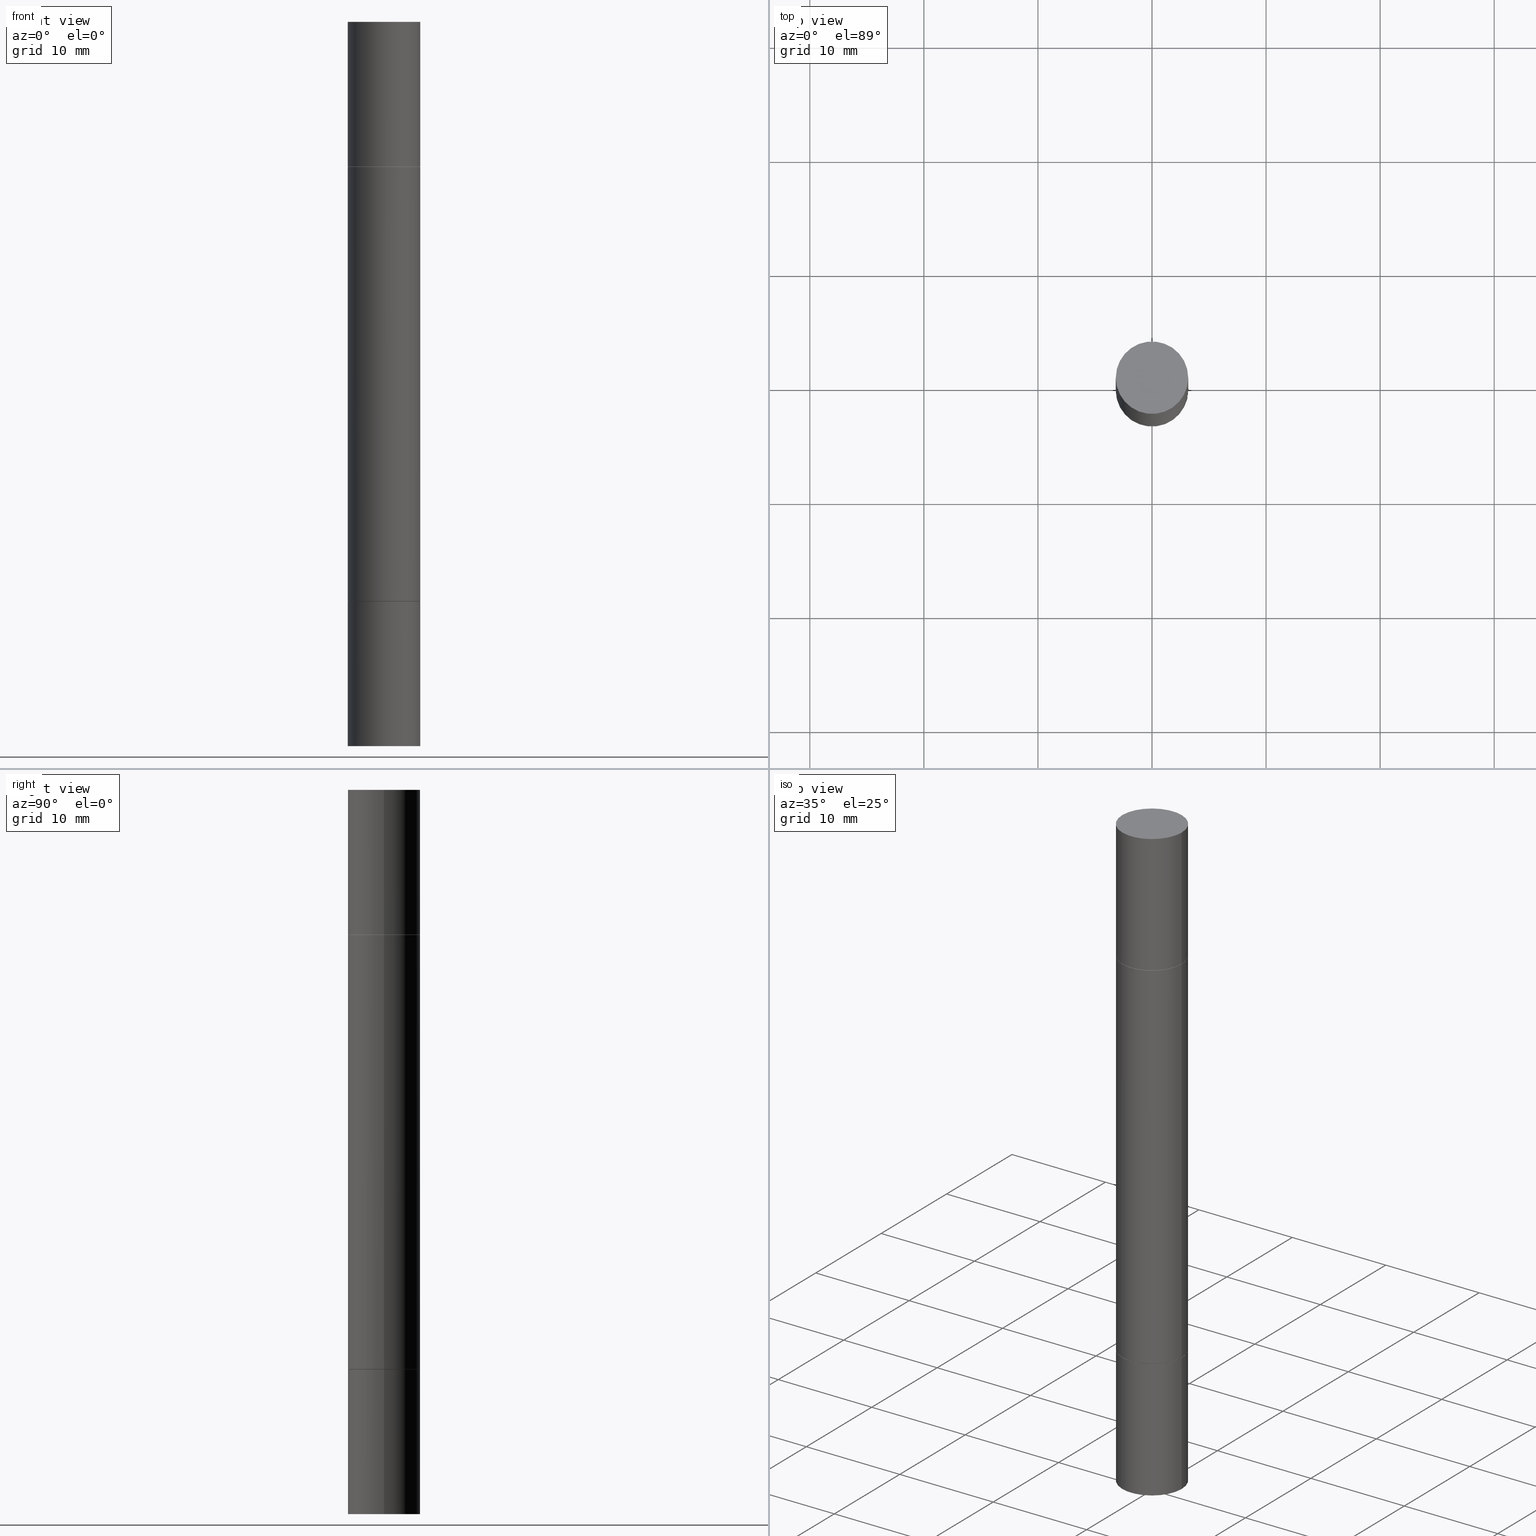
[diagram: canonical four-view strip — front | top / right | iso, engineering-drawing reading convention]
A machine part, canonical four-view strip (front | top / right | iso — engineering-drawing reading convention). The complete STEP part file that produces these views, byte-faithful:
ISO-10303-21;
HEADER;
FILE_DESCRIPTION (( 'STEP AP203' ),
    '1' );
FILE_NAME ('39679.STEP',
    '2024-03-04T15:44:06',
    ( '' ),
    ( '' ),
    'SwSTEP 2.0',
    'SolidWorks 2023',
    '' );
FILE_SCHEMA (( 'CONFIG_CONTROL_DESIGN' ));
ENDSEC;

DATA;
#1 = PRODUCT_DEFINITION ( 'UNKNOWN', '', #660, #491 ) ;
#2 = VECTOR ( 'NONE', #573, 39.37007874015748143 ) ;
#3 = CIRCLE ( 'NONE', #79, 0.1250000000000000000 ) ;
#4 = LINE ( 'NONE', #632, #438 ) ;
#5 = ORGANIZATION ( 'UNSPECIFIED', 'UNSPECIFIED', '' ) ;
#6 = FACE_OUTER_BOUND ( 'NONE', #298, .T. ) ;
#7 = ORIENTED_EDGE ( 'NONE', *, *, #37, .T. ) ;
#8 = EDGE_CURVE ( 'NONE', #84, #595, #526, .T. ) ;
#9 = EDGE_CURVE ( 'NONE', #71, #234, #39, .T. ) ;
#10 = FACE_OUTER_BOUND ( 'NONE', #119, .T. ) ;
#11 = VERTEX_POINT ( 'NONE', #428 ) ;
#12 = DIRECTION ( 'NONE',  ( 0.7071067811866138531, -2.468850131082952047E-15, 0.7071067811864811814 ) ) ;
#13 = EDGE_CURVE ( 'NONE', #414, #11, #102, .T. ) ;
#14 = CIRCLE ( 'NONE', #329, 0.1250000000000000000 ) ;
#15 = AXIS2_PLACEMENT_3D ( 'NONE', #38, #668, #253 ) ;
#16 = CARTESIAN_POINT ( 'NONE',  ( 4.888492143564087591E-29, -1.748176755301667838E-15, -0.5009999999999996678 ) ) ;
#17 = EDGE_CURVE ( 'NONE', #463, #238, #537, .T. ) ;
#18 = APPROVAL_DATE_TIME ( #67, #368 ) ;
#19 = VERTEX_POINT ( 'NONE', #618 ) ;
#20 = DIRECTION ( 'NONE',  ( 1.000000000000000000, -6.982962677686266711E-15, 0.000000000000000000 ) ) ;
#21 = ORIENTED_EDGE ( 'NONE', *, *, #65, .F. ) ;
#22 = CARTESIAN_POINT ( 'NONE',  ( -0.1250000000000000000, -7.872902438272180196E-15, -2.499999999999999556 ) ) ;
#23 = ORIENTED_EDGE ( 'NONE', *, *, #129, .T. ) ;
#24 = EDGE_CURVE ( 'NONE', #238, #463, #287, .T. ) ;
#25 = CARTESIAN_POINT ( 'NONE',  ( 8.728703347108443769E-16, 0.1250000000000000278, 0.000000000000000000 ) ) ;
#26 = AXIS2_PLACEMENT_3D ( 'NONE', #544, #535, #638 ) ;
#27 = ORIENTED_EDGE ( 'NONE', *, *, #232, .T. ) ;
#28 = DIRECTION ( 'NONE',  ( 1.000000000000000000, -6.982962677686266711E-15, 0.000000000000000000 ) ) ;
#29 = ORIENTED_EDGE ( 'NONE', *, *, #394, .F. ) ;
#30 = PLANE ( 'NONE',  #301 ) ;
#31 = EDGE_LOOP ( 'NONE', ( #87, #442, #461, #457 ) ) ;
#32 = CARTESIAN_POINT ( 'NONE',  ( 3.056836007731420185E-29, -4.364351673553931682E-15, -1.249999999999999778 ) ) ;
#33 = EDGE_LOOP ( 'NONE', ( #63, #246, #281, #80 ) ) ;
#34 = VECTOR ( 'NONE', #436, 39.37007874015748143 ) ;
#35 = VECTOR ( 'NONE', #130, 39.37007874015748143 ) ;
#36 = CIRCLE ( 'NONE', #649, 0.1249999999999999861 ) ;
#37 = EDGE_CURVE ( 'NONE', #11, #326, #669, .T. ) ;
#38 = CARTESIAN_POINT ( 'NONE',  ( 8.728703347108321496E-16, 0.1249999999999982514, -0.4999999999999998335 ) ) ;
#39 = LINE ( 'NONE', #529, #112 ) ;
#40 = CARTESIAN_POINT ( 'NONE',  ( 0.1250000000000000000, -8.711089938250227947E-16, 5.463695987328526437E-16 ) ) ;
#41 = CARTESIAN_POINT ( 'NONE',  ( 4.890937612370272633E-29, -1.744683864890116287E-15, -0.4999999999999998335 ) ) ;
#42 = DIRECTION ( 'NONE',  ( -2.445468806185136597E-29, -3.492890411551752677E-15, -1.000000000000000000 ) ) ;
#43 = DIRECTION ( 'NONE',  ( 0.000000000000000000, 3.492185875197449524E-15, 1.000000000000000000 ) ) ;
#44 = CLOSED_SHELL ( 'NONE', ( #547, #254, #661, #221 ) ) ;
#45 = CALENDAR_DATE ( 2024, 4, 3 ) ;
#46 = AXIS2_PLACEMENT_3D ( 'NONE', #462, #83, #551 ) ;
#47 = CC_DESIGN_APPROVAL ( #424, ( #1 ) ) ;
#48 = CYLINDRICAL_SURFACE ( 'NONE', #290, 0.1250000000000000000 ) ;
#49 = CARTESIAN_POINT ( 'NONE',  ( 4.890937612370273194E-29, -6.982962677686291165E-15, -2.000000000000000000 ) ) ;
#50 = CARTESIAN_POINT ( 'NONE',  ( 0.000000000000000000, 0.000000000000000000, 0.000000000000000000 ) ) ;
#51 = DIRECTION ( 'NONE',  ( -2.445468806185136597E-29, -3.492890411551752677E-15, -1.000000000000000000 ) ) ;
#52 = DIRECTION ( 'NONE',  ( -2.445468806185136877E-29, -3.492890411551753071E-15, -1.000000000000000000 ) ) ;
#53 = CARTESIAN_POINT ( 'NONE',  ( 4.890937612370273194E-29, -1.744683864890115301E-15, -0.4999999999999996114 ) ) ;
#54 = FACE_OUTER_BOUND ( 'NONE', #552, .T. ) ;
#55 = ORIENTED_EDGE ( 'NONE', *, *, #90, .T. ) ;
#56 = ORIENTED_EDGE ( 'NONE', *, *, #583, .T. ) ;
#57 = ADVANCED_FACE ( 'NONE', ( #525 ), #474, .F. ) ;
#58 = PLANE ( 'NONE',  #671 ) ;
#59 = ORIENTED_EDGE ( 'NONE', *, *, #191, .T. ) ;
#60 = EDGE_CURVE ( 'NONE', #407, #234, #14, .T. ) ;
#61 = DIRECTION ( 'NONE',  ( 2.445468806185136597E-29, 3.492890411551752677E-15, 1.000000000000000000 ) ) ;
#62 = EDGE_LOOP ( 'NONE', ( #655, #611, #56, #499 ) ) ;
#63 = ORIENTED_EDGE ( 'NONE', *, *, #226, .F. ) ;
#64 = CARTESIAN_POINT ( 'NONE',  ( 4.888492143564087591E-29, -1.748176755301667838E-15, -0.5009999999999996678 ) ) ;
#65 = EDGE_CURVE ( 'NONE', #454, #393, #371, .T. ) ;
#66 = ORIENTED_EDGE ( 'NONE', *, *, #191, .F. ) ;
#67 = DATE_AND_TIME ( #274, #91 ) ;
#68 = AXIS2_PLACEMENT_3D ( 'NONE', #484, #252, #195 ) ;
#69 = DIRECTION ( 'NONE',  ( 1.000000000000000000, -6.982962677686270655E-15, 0.000000000000000000 ) ) ;
#70 = APPROVAL_PERSON_ORGANIZATION ( #107, #288, #523 ) ;
#71 = VERTEX_POINT ( 'NONE', #94 ) ;
#72 = CARTESIAN_POINT ( 'NONE',  ( 4.890937612370273194E-29, -1.744683864890115301E-15, -0.4999999999999996114 ) ) ;
#73 = VERTEX_POINT ( 'NONE', #431 ) ;
#74 = CC_DESIGN_PERSON_AND_ORGANIZATION_ASSIGNMENT ( #439, #153, ( #660 ) ) ;
#75 = DIRECTION ( 'NONE',  ( -1.000000000000000000, 6.982962677686265922E-15, -9.839502134516470631E-33 ) ) ;
#76 = ORIENTED_EDGE ( 'NONE', *, *, #540, .F. ) ;
#77 = AXIS2_PLACEMENT_3D ( 'NONE', #272, #275, #69 ) ;
#78 = CARTESIAN_POINT ( 'NONE',  ( -0.1250000000000000000, -6.967654592696952427E-15, -2.000000000000000000 ) ) ;
#79 = AXIS2_PLACEMENT_3D ( 'NONE', #284, #352, #182 ) ;
#80 = ORIENTED_EDGE ( 'NONE', *, *, #132, .F. ) ;
#81 = DIRECTION ( 'NONE',  ( 1.000000000000000000, -6.982962677686266711E-15, 0.000000000000000000 ) ) ;
#82 = ORIENTED_EDGE ( 'NONE', *, *, #188, .T. ) ;
#83 = DIRECTION ( 'NONE',  ( -2.445468806185136597E-29, -3.492890411551752677E-15, -1.000000000000000000 ) ) ;
#84 = VERTEX_POINT ( 'NONE', #312 ) ;
#85 = ADVANCED_FACE ( 'NONE', ( #152 ), #576, .F. ) ;
#86 = DIRECTION ( 'NONE',  ( 1.000000000000000000, -6.982962677686265922E-15, 4.876176775795935793E-29 ) ) ;
#87 = ORIENTED_EDGE ( 'NONE', *, *, #286, .F. ) ;
#88 = VECTOR ( 'NONE', #673, 39.37007874015748143 ) ;
#89 = AXIS2_PLACEMENT_3D ( 'NONE', #546, #325, #219 ) ;
#90 = EDGE_CURVE ( 'NONE', #229, #358, #471, .T. ) ;
#91 = LOCAL_TIME ( 10, 44, 6.000000000000000000, #333 ) ;
#92 = COORDINATED_UNIVERSAL_TIME_OFFSET ( 5, 0, .BEHIND. ) ;
#93 = DIRECTION ( 'NONE',  ( 2.445468806185136597E-29, 3.492890411551752677E-15, 1.000000000000000000 ) ) ;
#94 = CARTESIAN_POINT ( 'NONE',  ( 0.1250000000000000000, -9.601573681818648281E-15, -2.500000000000000000 ) ) ;
#95 = PRODUCT_RELATED_PRODUCT_CATEGORY ( 'detail', '', ( #382 ) ) ;
#96 = DIRECTION ( 'NONE',  ( 1.000000000000000000, 0.000000000000000000, 0.000000000000000000 ) ) ;
#97 = DIRECTION ( 'NONE',  ( 1.000000000000000000, -6.982962677686262766E-15, 0.000000000000000000 ) ) ;
#98 = CARTESIAN_POINT ( 'NONE',  ( 4.888492143564087591E-29, -1.748176755301667838E-15, -0.5009999999999996678 ) ) ;
#99 = CALENDAR_DATE ( 2024, 4, 3 ) ;
#100 = DIRECTION ( 'NONE',  ( 1.000000000000000000, -6.982962677686270655E-15, 0.000000000000000000 ) ) ;
#101 = DIRECTION ( 'NONE',  ( 2.445468806185136597E-29, 3.492890411551752677E-15, 1.000000000000000000 ) ) ;
#102 = CIRCLE ( 'NONE', #299, 0.1250000000000000000 ) ;
#103 = AXIS2_PLACEMENT_3D ( 'NONE', #217, #501, #213 ) ;
#104 = DIRECTION ( 'NONE',  ( -2.445468806185136877E-29, -3.492890411551753071E-15, -1.000000000000000000 ) ) ;
#105 = EDGE_CURVE ( 'NONE', #229, #344, #557, .T. ) ;
#106 = DIRECTION ( 'NONE',  ( 1.000000000000000000, -6.982962677686267499E-15, 0.000000000000000000 ) ) ;
#107 = PERSON_AND_ORGANIZATION ( #434, #5 ) ;
#108 = DIRECTION ( 'NONE',  ( 1.000000000000000000, -6.982962677686263555E-15, 0.000000000000000000 ) ) ;
#109 = CARTESIAN_POINT ( 'NONE',  ( -0.1249999999999999861, -8.906145055802259979E-16, -0.5009999999999996678 ) ) ;
#110 = CARTESIAN_POINT ( 'NONE',  ( 0.1250000000000000000, -8.711089938250227947E-16, 5.463695987328526437E-16 ) ) ;
#111 = FACE_OUTER_BOUND ( 'NONE', #175, .T. ) ;
#112 = VECTOR ( 'NONE', #208, 39.37007874015748143 ) ;
#113 = AXIS2_PLACEMENT_3D ( 'NONE', #553, #460, #646 ) ;
#114 =( GEOMETRIC_REPRESENTATION_CONTEXT ( 3 ) GLOBAL_UNCERTAINTY_ASSIGNED_CONTEXT ( ( #126 ) ) GLOBAL_UNIT_ASSIGNED_CONTEXT ( ( #148, #199, #323 ) ) REPRESENTATION_CONTEXT ( 'NONE', 'WORKASPACE' ) );
#115 = DIRECTION ( 'NONE',  ( 1.000000000000000000, -6.982962677686267499E-15, 0.000000000000000000 ) ) ;
#116 = CYLINDRICAL_SURFACE ( 'NONE', #26, 0.1250000000000000000 ) ;
#117 = EDGE_LOOP ( 'NONE', ( #283, #643, #550, #230 ) ) ;
#118 = CARTESIAN_POINT ( 'NONE',  ( 0.1250000000000000000, -7.855833012397075293E-15, -2.000000000000000000 ) ) ;
#119 = EDGE_LOOP ( 'NONE', ( #422, #201, #59, #186 ) ) ;
#120 = AXIS2_PLACEMENT_3D ( 'NONE', #427, #248, #373 ) ;
#121 = CYLINDRICAL_SURFACE ( 'NONE', #256, 0.1249999999999998612 ) ;
#122 = CC_DESIGN_PERSON_AND_ORGANIZATION_ASSIGNMENT ( #432, #566, ( #1 ) ) ;
#123 = AXIS2_PLACEMENT_3D ( 'NONE', #587, #51, #635 ) ;
#124 = VERTEX_POINT ( 'NONE', #481 ) ;
#125 = EDGE_LOOP ( 'NONE', ( #21, #504, #409, #285 ) ) ;
#126 = UNCERTAINTY_MEASURE_WITH_UNIT (LENGTH_MEASURE( 1.000000000000000082E-05 ), #148, 'distance_accuracy_value', 'NONE');
#127 = DIRECTION ( 'NONE',  ( 2.445468806185136597E-29, 3.492890411551752677E-15, 1.000000000000000000 ) ) ;
#128 = ORIENTED_EDGE ( 'NONE', *, *, #90, .F. ) ;
#129 = EDGE_CURVE ( 'NONE', #171, #561, #612, .T. ) ;
#130 = DIRECTION ( 'NONE',  ( -2.445468806185136877E-29, -3.492890411551753071E-15, -1.000000000000000000 ) ) ;
#131 = ORIENTED_EDGE ( 'NONE', *, *, #24, .F. ) ;
#132 = EDGE_CURVE ( 'NONE', #615, #296, #375, .T. ) ;
#133 = CARTESIAN_POINT ( 'NONE',  ( 6.113672015462842613E-29, 1.761340885760521790E-18, 5.463695987328526437E-16 ) ) ;
#134 = AXIS2_PLACEMENT_3D ( 'NONE', #192, #149, #97 ) ;
#135 = EDGE_LOOP ( 'NONE', ( #336, #469 ) ) ;
#136 = ADVANCED_FACE ( 'NONE', ( #198 ), #263, .F. ) ;
#137 = DIRECTION ( 'NONE',  ( -2.445468806185136597E-29, -3.492890411551752677E-15, -1.000000000000000000 ) ) ;
#138 = EDGE_LOOP ( 'NONE', ( #337, #7, #548, #240 ) ) ;
#139 = MANIFOLD_SOLID_BREP ( 'Combine1', #458 ) ;
#140 = CARTESIAN_POINT ( 'NONE',  ( 4.890937612370273194E-29, -6.982962677686291165E-15, -2.000000000000000000 ) ) ;
#141 = EDGE_CURVE ( 'NONE', #463, #227, #446, .T. ) ;
#142 = DIRECTION ( 'NONE',  ( 2.445468806185136597E-29, 3.492890411551752677E-15, 1.000000000000000000 ) ) ;
#143 = MANIFOLD_SOLID_BREP ( 'Mirror1[1]', #658 ) ;
#144 = DIRECTION ( 'NONE',  ( 1.000000000000000000, -6.982962677686266711E-15, 0.000000000000000000 ) ) ;
#145 = AXIS2_PLACEMENT_3D ( 'NONE', #316, #363, #146 ) ;
#146 = DIRECTION ( 'NONE',  ( 1.000000000000000000, -6.982962677686266711E-15, 0.000000000000000000 ) ) ;
#147 = AXIS2_PLACEMENT_3D ( 'NONE', #251, #521, #100 ) ;
#148 =( CONVERSION_BASED_UNIT ( 'INCH', #634 ) LENGTH_UNIT ( ) NAMED_UNIT ( #560 ) );
#149 = DIRECTION ( 'NONE',  ( -2.445468806185136597E-29, -3.492890411551752677E-15, -1.000000000000000000 ) ) ;
#150 = EDGE_LOOP ( 'NONE', ( #680, #27, #628, #66 ) ) ;
#151 = CARTESIAN_POINT ( 'NONE',  ( 0.000000000000000000, 0.000000000000000000, 0.000000000000000000 ) ) ;
#152 = FACE_OUTER_BOUND ( 'NONE', #215, .T. ) ;
#153 = PERSON_AND_ORGANIZATION_ROLE ( 'design_supplier' ) ;
#154 = MANIFOLD_SOLID_BREP ( 'Mirror1[4]', #590 ) ;
#155 = DIRECTION ( 'NONE',  ( -2.445468806185136597E-29, -3.492890411551752677E-15, -1.000000000000000000 ) ) ;
#156 = CARTESIAN_POINT ( 'NONE',  ( 0.000000000000000000, 0.000000000000000000, -1.249999999999999778 ) ) ;
#157 = DATE_TIME_ROLE ( 'creation_date' ) ;
#158 = LOCAL_TIME ( 10, 44, 6.000000000000000000, #92 ) ;
#159 = CARTESIAN_POINT ( 'NONE',  ( 0.1249999999999999861, -2.621047090012450585E-15, -0.5009999999999996678 ) ) ;
#160 = CARTESIAN_POINT ( 'NONE',  ( 0.1239999999999999991, -2.610571236923213217E-15, -0.4999999999999998335 ) ) ;
#161 = ADVANCED_FACE ( 'NONE', ( #111 ), #542, .T. ) ;
#162 = PERSON_AND_ORGANIZATION_ROLE ( 'design_owner' ) ;
#163 = CARTESIAN_POINT ( 'NONE',  ( 8.728703347108321496E-16, 0.1249999999999930195, -2.000000000000000444 ) ) ;
#164 = CARTESIAN_POINT ( 'NONE',  ( 4.890937612370272633E-29, -6.982962677686290376E-15, -1.999999999999999778 ) ) ;
#165 = ORIENTED_EDGE ( 'NONE', *, *, #105, .T. ) ;
#166 = CARTESIAN_POINT ( 'NONE',  ( 0.1249999999999999861, -7.852341531058230708E-15, -1.998999999999999888 ) ) ;
#167 = ORIENTED_EDGE ( 'NONE', *, *, #493, .T. ) ;
#168 = CIRCLE ( 'NONE', #113, 0.1249999999999998612 ) ;
#169 = SECURITY_CLASSIFICATION ( '', '', #196 ) ;
#170 = LINE ( 'NONE', #594, #613 ) ;
#171 = VERTEX_POINT ( 'NONE', #488 ) ;
#172 = EDGE_CURVE ( 'NONE', #595, #84, #266, .T. ) ;
#173 = CARTESIAN_POINT ( 'NONE',  ( -0.1239999999999999991, -8.939821131664464541E-16, -0.4999999999999998335 ) ) ;
#174 = DIRECTION ( 'NONE',  ( -2.445468806185136597E-29, -3.492890411551752677E-15, -1.000000000000000000 ) ) ;
#175 = EDGE_LOOP ( 'NONE', ( #214, #392, #273, #349 ) ) ;
#176 = AXIS2_PLACEMENT_3D ( 'NONE', #303, #522, #677 ) ;
#177 = AXIS2_PLACEMENT_3D ( 'NONE', #666, #308, #620 ) ;
#178 = EDGE_CURVE ( 'NONE', #454, #322, #350, .T. ) ;
#179 = AXIS2_PLACEMENT_3D ( 'NONE', #291, #137, #604 ) ;
#180 = CARTESIAN_POINT ( 'NONE',  ( 4.890937612370272633E-29, -1.744683864890116287E-15, -0.4999999999999998335 ) ) ;
#181 = ORIENTED_EDGE ( 'NONE', *, *, #9, .F. ) ;
#182 = DIRECTION ( 'NONE',  ( 1.000000000000000000, -6.982962677686266711E-15, 0.000000000000000000 ) ) ;
#183 = VERTEX_POINT ( 'NONE', #637 ) ;
#184 = ADVANCED_FACE ( 'NONE', ( #279 ), #630, .T. ) ;
#185 = CYLINDRICAL_SURFACE ( 'NONE', #179, 0.1249999999999998612 ) ;
#186 = ORIENTED_EDGE ( 'NONE', *, *, #17, .T. ) ;
#187 = EDGE_CURVE ( 'NONE', #238, #393, #328, .T. ) ;
#188 = EDGE_CURVE ( 'NONE', #615, #358, #647, .T. ) ;
#189 = DIRECTION ( 'NONE',  ( 2.445468806185136597E-29, 3.492890411551752677E-15, 1.000000000000000000 ) ) ;
#190 = ORIENTED_EDGE ( 'NONE', *, *, #644, .T. ) ;
#191 = EDGE_CURVE ( 'NONE', #561, #463, #539, .T. ) ;
#192 = CARTESIAN_POINT ( 'NONE',  ( 0.000000000000000000, -8.730464687993621641E-15, -2.499999999999999556 ) ) ;
#193 = ORIENTED_EDGE ( 'NONE', *, *, #187, .T. ) ;
#194 = DIRECTION ( 'NONE',  ( 1.000000000000000000, -6.982962677686270655E-15, 0.000000000000000000 ) ) ;
#195 = DIRECTION ( 'NONE',  ( 1.000000000000000000, -6.982962677686266711E-15, 0.000000000000000000 ) ) ;
#196 = SECURITY_CLASSIFICATION_LEVEL ( 'unclassified' ) ;
#197 = CARTESIAN_POINT ( 'NONE',  ( 0.000000000000000000, -8.730464687993621641E-15, -2.499999999999999556 ) ) ;
#198 = FACE_OUTER_BOUND ( 'NONE', #417, .T. ) ;
#199 =( NAMED_UNIT ( * ) PLANE_ANGLE_UNIT ( ) SI_UNIT ( $, .RADIAN. ) );
#200 = CARTESIAN_POINT ( 'NONE',  ( 0.000000000000000000, -8.730464687993621641E-15, -2.499999999999999556 ) ) ;
#201 = ORIENTED_EDGE ( 'NONE', *, *, #354, .F. ) ;
#202 = PERSON_AND_ORGANIZATION ( #434, #5 ) ;
#203 = DIRECTION ( 'NONE',  ( 0.7071067811866138531, -7.407546758114477315E-15, -0.7071067811864811814 ) ) ;
#204 = CARTESIAN_POINT ( 'NONE',  ( 6.113672015462842613E-29, 1.761340885760521790E-18, 5.463695987328526437E-16 ) ) ;
#205 = EDGE_CURVE ( 'NONE', #322, #227, #170, .T. ) ;
#206 = PERSON_AND_ORGANIZATION ( #434, #5 ) ;
#207 = CARTESIAN_POINT ( 'NONE',  ( 6.113672015462842613E-29, -8.728703347107864943E-15, -2.500000000000000000 ) ) ;
#208 = DIRECTION ( 'NONE',  ( -2.445468806185136877E-29, 3.491481338843145188E-15, 1.000000000000000000 ) ) ;
#209 = DATE_AND_TIME ( #369, #158 ) ;
#210 = AXIS2_PLACEMENT_3D ( 'NONE', #163, #383, #534 ) ;
#211 = CARTESIAN_POINT ( 'NONE',  ( -0.1250000000000000000, -1.389901228073636467E-17, -0.4999999999999996114 ) ) ;
#212 = EDGE_CURVE ( 'NONE', #234, #407, #659, .T. ) ;
#213 = DIRECTION ( 'NONE',  ( 1.000000000000000000, -6.982962677686266711E-15, 0.000000000000000000 ) ) ;
#214 = ORIENTED_EDGE ( 'NONE', *, *, #37, .F. ) ;
#215 = EDGE_LOOP ( 'NONE', ( #639, #225 ) ) ;
#216 = CC_DESIGN_PERSON_AND_ORGANIZATION_ASSIGNMENT ( #202, #429, ( #660 ) ) ;
#217 = CARTESIAN_POINT ( 'NONE',  ( 4.890937612370272633E-29, -1.744683864890116287E-15, -0.4999999999999998335 ) ) ;
#218 = ORIENTED_EDGE ( 'NONE', *, *, #675, .T. ) ;
#219 = DIRECTION ( 'NONE',  ( 1.000000000000000000, -6.982962677686270655E-15, 0.000000000000000000 ) ) ;
#220 = ORIENTED_EDGE ( 'NONE', *, *, #500, .T. ) ;
#221 = ADVANCED_FACE ( 'NONE', ( #6 ), #116, .T. ) ;
#222 = AXIS2_PLACEMENT_3D ( 'NONE', #41, #101, #519 ) ;
#223 = AXIS2_PLACEMENT_3D ( 'NONE', #72, #127, #228 ) ;
#224 = DIRECTION ( 'NONE',  ( 2.445468806185136597E-29, 3.492890411551752677E-15, 1.000000000000000000 ) ) ;
#225 = ORIENTED_EDGE ( 'NONE', *, *, #433, .T. ) ;
#226 = EDGE_CURVE ( 'NONE', #358, #615, #475, .T. ) ;
#227 = VERTEX_POINT ( 'NONE', #166 ) ;
#228 = DIRECTION ( 'NONE',  ( 1.000000000000000000, -6.982962677686266711E-15, 0.000000000000000000 ) ) ;
#229 = VERTEX_POINT ( 'NONE', #338 ) ;
#230 = ORIENTED_EDGE ( 'NONE', *, *, #433, .F. ) ;
#231 = EDGE_CURVE ( 'NONE', #183, #326, #267, .T. ) ;
#232 = EDGE_CURVE ( 'NONE', #171, #238, #645, .T. ) ;
#233 = DIRECTION ( 'NONE',  ( 2.438088387897959769E-29, 3.492890411551753071E-15, 1.000000000000000000 ) ) ;
#234 = VERTEX_POINT ( 'NONE', #118 ) ;
#235 = AXIS2_PLACEMENT_3D ( 'NONE', #156, #43, #367 ) ;
#236 = AXIS2_PLACEMENT_3D ( 'NONE', #16, #61, #444 ) ;
#237 = DIRECTION ( 'NONE',  ( 1.000000000000000000, -6.982962677686270655E-15, 0.000000000000000000 ) ) ;
#238 = VERTEX_POINT ( 'NONE', #109 ) ;
#239 = CARTESIAN_POINT ( 'NONE',  ( -0.1249999999999999861, -8.906145055802259979E-16, -0.5009999999999996678 ) ) ;
#240 = ORIENTED_EDGE ( 'NONE', *, *, #397, .F. ) ;
#241 = DIRECTION ( 'NONE',  ( -2.445468806185136877E-29, -3.492890411551753071E-15, -1.000000000000000000 ) ) ;
#242 = ORIENTED_EDGE ( 'NONE', *, *, #9, .T. ) ;
#243 = CLOSED_SHELL ( 'NONE', ( #528, #390, #490, #161 ) ) ;
#244 = DIRECTION ( 'NONE',  ( 1.000000000000000000, -6.982962677686266711E-15, 4.876176775795935793E-29 ) ) ;
#245 = CONICAL_SURFACE ( 'NONE', #147, 0.1239999999999999991, 0.7853981633975420928 ) ;
#246 = ORIENTED_EDGE ( 'NONE', *, *, #520, .T. ) ;
#247 = CC_DESIGN_PERSON_AND_ORGANIZATION_ASSIGNMENT ( #577, #420, ( #169 ) ) ;
#248 = DIRECTION ( 'NONE',  ( -2.445468806185136597E-29, 3.491481338843145583E-15, 1.000000000000000000 ) ) ;
#249 = DIRECTION ( 'NONE',  ( 1.000000000000000000, -6.982962677686266711E-15, 0.000000000000000000 ) ) ;
#250 = PERSON_AND_ORGANIZATION ( #434, #5 ) ;
#251 = CARTESIAN_POINT ( 'NONE',  ( 4.890937612370272633E-29, -6.982962677686290376E-15, -1.999999999999999778 ) ) ;
#252 = DIRECTION ( 'NONE',  ( 2.445468806185136597E-29, 3.492890411551752677E-15, 1.000000000000000000 ) ) ;
#253 = DIRECTION ( 'NONE',  ( -1.000000000000000000, 6.982962677686265922E-15, -9.839502134516470631E-33 ) ) ;
#254 = ADVANCED_FACE ( 'NONE', ( #54 ), #58, .T. ) ;
#255 = CARTESIAN_POINT ( 'NONE',  ( -0.1239999999999999991, -8.939821131664464541E-16, -0.4999999999999998335 ) ) ;
#256 = AXIS2_PLACEMENT_3D ( 'NONE', #656, #343, #555 ) ;
#257 = APPROVAL_PERSON_ORGANIZATION ( #206, #368, #584 ) ;
#258 = APPROVAL_STATUS ( 'not_yet_approved' ) ;
#259 = CYLINDRICAL_SURFACE ( 'NONE', #319, 0.1250000000000000000 ) ;
#260 = DIRECTION ( 'NONE',  ( 2.445468806185136597E-29, 3.492890411551752677E-15, 1.000000000000000000 ) ) ;
#261 = DIRECTION ( 'NONE',  ( 0.000000000000000000, 0.000000000000000000, 1.000000000000000000 ) ) ;
#262 = DIRECTION ( 'NONE',  ( -2.445468806185136597E-29, 3.491481338843145583E-15, 1.000000000000000000 ) ) ;
#263 = PLANE ( 'NONE',  #387 ) ;
#264 = FACE_OUTER_BOUND ( 'NONE', #280, .T. ) ;
#265 = DIRECTION ( 'NONE',  ( -2.438088387897959769E-29, -3.492890411551753071E-15, -1.000000000000000000 ) ) ;
#266 = CIRCLE ( 'NONE', #640, 0.1250000000000000000 ) ;
#267 = CIRCLE ( 'NONE', #567, 0.1250000000000000000 ) ;
#268 = VECTOR ( 'NONE', #569, 39.37007874015748143 ) ;
#269 = CARTESIAN_POINT ( 'NONE',  ( 8.728703347108443769E-16, 0.1249999999999912709, -2.500000000000000444 ) ) ;
#270 = ORIENTED_EDGE ( 'NONE', *, *, #509, .F. ) ;
#271 = ADVANCED_FACE ( 'NONE', ( #10 ), #411, .T. ) ;
#272 = CARTESIAN_POINT ( 'NONE',  ( 0.000000000000000000, -8.730464687993621641E-15, -2.499999999999999556 ) ) ;
#273 = ORIENTED_EDGE ( 'NONE', *, *, #397, .T. ) ;
#274 = CALENDAR_DATE ( 2024, 4, 3 ) ;
#275 = DIRECTION ( 'NONE',  ( -2.445468806185136597E-29, -3.492890411551752677E-15, -1.000000000000000000 ) ) ;
#276 = EDGE_LOOP ( 'NONE', ( #465, #295 ) ) ;
#277 = VECTOR ( 'NONE', #391, 39.37007874015748143 ) ;
#278 = VECTOR ( 'NONE', #203, 39.37007874015748143 ) ;
#279 = FACE_OUTER_BOUND ( 'NONE', #150, .T. ) ;
#280 = EDGE_LOOP ( 'NONE', ( #657, #55, #451, #76 ) ) ;
#281 = ORIENTED_EDGE ( 'NONE', *, *, #374, .F. ) ;
#282 = FACE_OUTER_BOUND ( 'NONE', #135, .T. ) ;
#283 = ORIENTED_EDGE ( 'NONE', *, *, #520, .F. ) ;
#284 = CARTESIAN_POINT ( 'NONE',  ( 6.113672015462842613E-29, 1.761340885760521790E-18, 5.463695987328526437E-16 ) ) ;
#285 = ORIENTED_EDGE ( 'NONE', *, *, #664, .F. ) ;
#286 = EDGE_CURVE ( 'NONE', #124, #652, #497, .T. ) ;
#287 = CIRCLE ( 'NONE', #315, 0.1249999999999999861 ) ;
#288 = APPROVAL ( #258, 'UNSPECIFIED' ) ;
#289 = AXIS2_PLACEMENT_3D ( 'NONE', #456, #559, #81 ) ;
#290 = AXIS2_PLACEMENT_3D ( 'NONE', #200, #155, #625 ) ;
#291 = CARTESIAN_POINT ( 'NONE',  ( 0.000000000000000000, -8.730464687993621641E-15, -2.499999999999999556 ) ) ;
#292 = ORIENTED_EDGE ( 'NONE', *, *, #205, .F. ) ;
#293 = CARTESIAN_POINT ( 'NONE',  ( 8.728703347108443769E-16, 0.1250000000000000278, 0.000000000000000000 ) ) ;
#294 = ADVANCED_FACE ( 'NONE', ( #413 ), #185, .T. ) ;
#295 = ORIENTED_EDGE ( 'NONE', *, *, #178, .F. ) ;
#296 = VERTEX_POINT ( 'NONE', #408 ) ;
#297 = PLANE ( 'NONE',  #466 ) ;
#298 = EDGE_LOOP ( 'NONE', ( #511, #405, #242, #602 ) ) ;
#299 = AXIS2_PLACEMENT_3D ( 'NONE', #204, #260, #249 ) ;
#300 = FACE_OUTER_BOUND ( 'NONE', #117, .T. ) ;
#301 = AXIS2_PLACEMENT_3D ( 'NONE', #293, #503, #75 ) ;
#302 = AXIS2_PLACEMENT_3D ( 'NONE', #140, #564, #86 ) ;
#303 = CARTESIAN_POINT ( 'NONE',  ( 8.728703347108321496E-16, 0.1249999999999982514, -0.4999999999999998335 ) ) ;
#304 = EDGE_CURVE ( 'NONE', #652, #124, #3, .T. ) ;
#305 = COORDINATED_UNIVERSAL_TIME_OFFSET ( 5, 0, .BEHIND. ) ;
#306 = ADVANCED_FACE ( 'NONE', ( #562 ), #341, .T. ) ;
#307 = CARTESIAN_POINT ( 'NONE',  ( -0.1249999999999998612, -7.872902438272180196E-15, -2.499999999999999556 ) ) ;
#308 = DIRECTION ( 'NONE',  ( 2.445468806185136597E-29, 3.492890411551752677E-15, 1.000000000000000000 ) ) ;
#309 = DATE_AND_TIME ( #99, #498 ) ;
#310 = EDGE_CURVE ( 'NONE', #124, #595, #614, .T. ) ;
#311 = FACE_OUTER_BOUND ( 'NONE', #31, .T. ) ;
#312 = CARTESIAN_POINT ( 'NONE',  ( 0.1250000000000000000, -2.617554199600898443E-15, -0.4999999999999996114 ) ) ;
#313 = COORDINATED_UNIVERSAL_TIME_OFFSET ( 5, 0, .BEHIND. ) ;
#314 = FACE_OUTER_BOUND ( 'NONE', #138, .T. ) ;
#315 = AXIS2_PLACEMENT_3D ( 'NONE', #98, #142, #106 ) ;
#316 = CARTESIAN_POINT ( 'NONE',  ( 4.890937612370273194E-29, -1.744683864890115301E-15, -0.4999999999999996114 ) ) ;
#317 = CONICAL_SURFACE ( 'NONE', #359, 0.1239999999999999991, 0.7853981633975420928 ) ;
#318 = ADVANCED_FACE ( 'NONE', ( #510 ), #297, .T. ) ;
#319 = AXIS2_PLACEMENT_3D ( 'NONE', #197, #476, #194 ) ;
#320 = COORDINATED_UNIVERSAL_TIME_OFFSET ( 5, 0, .BEHIND. ) ;
#321 = CARTESIAN_POINT ( 'NONE',  ( -0.1250000000000000000, 8.881784197001252323E-16, -6.148668862818632227E-30 ) ) ;
#322 = VERTEX_POINT ( 'NONE', #406 ) ;
#323 =( NAMED_UNIT ( * ) SI_UNIT ( $, .STERADIAN. ) SOLID_ANGLE_UNIT ( ) );
#324 = PLANE ( 'NONE',  #210 ) ;
#325 = DIRECTION ( 'NONE',  ( -2.445468806185136597E-29, 3.491481338843145583E-15, 1.000000000000000000 ) ) ;
#326 = VERTEX_POINT ( 'NONE', #606 ) ;
#327 = FACE_OUTER_BOUND ( 'NONE', #563, .T. ) ;
#328 = LINE ( 'NONE', #496, #34 ) ;
#329 = AXIS2_PLACEMENT_3D ( 'NONE', #49, #582, #626 ) ;
#330 = VECTOR ( 'NONE', #104, 39.37007874015748143 ) ;
#331 = DIRECTION ( 'NONE',  ( -2.445468806185136877E-29, -3.492890411551753071E-15, -1.000000000000000000 ) ) ;
#332 = ORIENTED_EDGE ( 'NONE', *, *, #8, .F. ) ;
#333 = COORDINATED_UNIVERSAL_TIME_OFFSET ( 5, 0, .BEHIND. ) ;
#334 = EDGE_CURVE ( 'NONE', #326, #183, #516, .T. ) ;
#335 = DIRECTION ( 'NONE',  ( 2.445468806185136597E-29, 3.492890411551752677E-15, 1.000000000000000000 ) ) ;
#336 = ORIENTED_EDGE ( 'NONE', *, *, #13, .T. ) ;
#337 = ORIENTED_EDGE ( 'NONE', *, *, #505, .F. ) ;
#338 = CARTESIAN_POINT ( 'NONE',  ( -0.1239999999999999991, -8.922983093733360288E-16, -0.4999999999999998335 ) ) ;
#339 = ORIENTED_EDGE ( 'NONE', *, *, #286, .T. ) ;
#340 = AXIS2_PLACEMENT_3D ( 'NONE', #588, #586, #20 ) ;
#341 = CONICAL_SURFACE ( 'NONE', #641, 0.1239999999999999991, 0.7853981633975420928 ) ;
#342 = DIRECTION ( 'NONE',  ( 1.000000000000000000, -6.982962677686270655E-15, 0.000000000000000000 ) ) ;
#343 = DIRECTION ( 'NONE',  ( -2.445468806185136597E-29, -3.492890411551752677E-15, -1.000000000000000000 ) ) ;
#344 = VERTEX_POINT ( 'NONE', #453 ) ;
#345 = FACE_OUTER_BOUND ( 'NONE', #616, .T. ) ;
#346 = ORIENTED_EDGE ( 'NONE', *, *, #212, .F. ) ;
#347 = ADVANCED_FACE ( 'NONE', ( #345 ), #317, .T. ) ;
#348 = FACE_OUTER_BOUND ( 'NONE', #33, .T. ) ;
#349 = ORIENTED_EDGE ( 'NONE', *, *, #231, .T. ) ;
#350 = CIRCLE ( 'NONE', #578, 0.1239999999999999991 ) ;
#351 = VECTOR ( 'NONE', #591, 39.37007874015748143 ) ;
#352 = DIRECTION ( 'NONE',  ( 2.445468806185136597E-29, 3.492890411551752677E-15, 1.000000000000000000 ) ) ;
#353 = ORIENTED_EDGE ( 'NONE', *, *, #141, .F. ) ;
#354 = EDGE_CURVE ( 'NONE', #561, #171, #388, .T. ) ;
#355 = DIRECTION ( 'NONE',  ( -2.445468806185136597E-29, 3.491481338843145583E-15, 1.000000000000000000 ) ) ;
#356 = ORIENTED_EDGE ( 'NONE', *, *, #675, .F. ) ;
#357 = FACE_OUTER_BOUND ( 'NONE', #62, .T. ) ;
#358 = VERTEX_POINT ( 'NONE', #239 ) ;
#359 = AXIS2_PLACEMENT_3D ( 'NONE', #609, #355, #237 ) ;
#360 = DIRECTION ( 'NONE',  ( -0.000000000000000000, -3.492185875197449130E-15, -1.000000000000000000 ) ) ;
#361 = CIRCLE ( 'NONE', #467, 0.1249999999999999861 ) ;
#362 = CIRCLE ( 'NONE', #477, 0.1250000000000000000 ) ;
#363 = DIRECTION ( 'NONE',  ( 2.445468806185136597E-29, 3.492890411551752677E-15, 1.000000000000000000 ) ) ;
#364 =( LENGTH_UNIT ( ) NAMED_UNIT ( * ) SI_UNIT ( $, .METRE. ) );
#365 = CYLINDRICAL_SURFACE ( 'NONE', #581, 0.1250000000000000000 ) ;
#366 = ADVANCED_FACE ( 'NONE', ( #648 ), #403, .T. ) ;
#367 = DIRECTION ( 'NONE',  ( 0.000000000000000000, 1.000000000000000000, -3.492185875197449524E-15 ) ) ;
#368 = APPROVAL ( #377, 'UNSPECIFIED' ) ;
#369 = CALENDAR_DATE ( 2024, 4, 3 ) ;
#370 = CARTESIAN_POINT ( 'NONE',  ( 4.890937612370272633E-29, -1.744683864890116287E-15, -0.4999999999999998335 ) ) ;
#371 = LINE ( 'NONE', #570, #400 ) ;
#372 = APPLICATION_PROTOCOL_DEFINITION ( 'international standard', 'config_control_design', 1994, #592 ) ;
#373 = DIRECTION ( 'NONE',  ( 1.000000000000000000, -6.982962677686270655E-15, 0.000000000000000000 ) ) ;
#374 = EDGE_CURVE ( 'NONE', #296, #19, #168, .T. ) ;
#375 = LINE ( 'NONE', #532, #670 ) ;
#376 = VECTOR ( 'NONE', #241, 39.37007874015748143 ) ;
#377 = APPROVAL_STATUS ( 'not_yet_approved' ) ;
#378 = MANIFOLD_SOLID_BREP ( 'Mirror1[3]', #243 ) ;
#379 = DIRECTION ( 'NONE',  ( -2.445468806185136597E-29, 3.491481338843145583E-15, 1.000000000000000000 ) ) ;
#380 = CC_DESIGN_PERSON_AND_ORGANIZATION_ASSIGNMENT ( #574, #162, ( #382 ) ) ;
#381 = DIRECTION ( 'NONE',  ( 1.000000000000000000, -6.982962677686265922E-15, 9.839502134516470631E-33 ) ) ;
#382 = PRODUCT ( '39679', '39679', '', ( #485 ) ) ;
#383 = DIRECTION ( 'NONE',  ( 2.438088387897960049E-29, -3.491481338843145188E-15, -1.000000000000000000 ) ) ;
#384 = DIRECTION ( 'NONE',  ( -2.445468806185136597E-29, 3.491481338843145583E-15, 1.000000000000000000 ) ) ;
#385 = ORIENTED_EDGE ( 'NONE', *, *, #509, .T. ) ;
#386 = DIRECTION ( 'NONE',  ( 1.000000000000000000, -6.982962677686266711E-15, 0.000000000000000000 ) ) ;
#387 = AXIS2_PLACEMENT_3D ( 'NONE', #425, #265, #381 ) ;
#388 = CIRCLE ( 'NONE', #289, 0.1239999999999999991 ) ;
#389 = LOCAL_TIME ( 10, 44, 6.000000000000000000, #313 ) ;
#390 = ADVANCED_FACE ( 'NONE', ( #282 ), #30, .T. ) ;
#391 = DIRECTION ( 'NONE',  ( 0.7071067811866138531, -7.407546758114477315E-15, -0.7071067811864811814 ) ) ;
#392 = ORIENTED_EDGE ( 'NONE', *, *, #13, .F. ) ;
#393 = VERTEX_POINT ( 'NONE', #398 ) ;
#394 = EDGE_CURVE ( 'NONE', #73, #71, #558, .T. ) ;
#395 = MANIFOLD_SOLID_BREP ( 'Body-Move/Copy2[1]', #44 ) ;
#396 = DIRECTION ( 'NONE',  ( 1.000000000000000000, -6.982962677686266711E-15, 0.000000000000000000 ) ) ;
#397 = EDGE_CURVE ( 'NONE', #414, #183, #464, .T. ) ;
#398 = CARTESIAN_POINT ( 'NONE',  ( -0.1249999999999999861, -3.506789423832488265E-15, -1.998999999999999888 ) ) ;
#399 = ORIENTED_EDGE ( 'NONE', *, *, #304, .T. ) ;
#400 = VECTOR ( 'NONE', #419, 39.37007874015748143 ) ;
#401 = AXIS2_PLACEMENT_3D ( 'NONE', #599, #654, #506 ) ;
#402 = CONICAL_SURFACE ( 'NONE', #123, 0.1239999999999999991, 0.7853981633975420928 ) ;
#403 = CYLINDRICAL_SURFACE ( 'NONE', #46, 0.1249999999999998612 ) ;
#404 = ADVANCED_FACE ( 'NONE', ( #348 ), #121, .T. ) ;
#405 = ORIENTED_EDGE ( 'NONE', *, *, #394, .T. ) ;
#406 = CARTESIAN_POINT ( 'NONE',  ( 0.1239999999999999991, -7.848850049719387701E-15, -1.999999999999999778 ) ) ;
#407 = VERTEX_POINT ( 'NONE', #78 ) ;
#408 = CARTESIAN_POINT ( 'NONE',  ( 0.1249999999999998612, -3.929134549138581225E-15, -1.249999999999999778 ) ) ;
#409 = ORIENTED_EDGE ( 'NONE', *, *, #205, .T. ) ;
#410 = VECTOR ( 'NONE', #331, 39.37007874015748143 ) ;
#411 = CONICAL_SURFACE ( 'NONE', #103, 0.1239999999999999991, 0.7853981633975420928 ) ;
#412 = APPROVAL_PERSON_ORGANIZATION ( #250, #424, #667 ) ;
#413 = FACE_OUTER_BOUND ( 'NONE', #495, .T. ) ;
#414 = VERTEX_POINT ( 'NONE', #40 ) ;
#415 = PRODUCT_DEFINITION_SHAPE ( 'NONE', 'NONE',  #1 ) ;
#416 = PLANE ( 'NONE',  #302 ) ;
#417 = EDGE_LOOP ( 'NONE', ( #385, #165 ) ) ;
#418 = LINE ( 'NONE', #676, #278 ) ;
#419 = DIRECTION ( 'NONE',  ( -0.7071067811866138531, 7.493145998870593974E-15, 0.7071067811864811814 ) ) ;
#420 = PERSON_AND_ORGANIZATION_ROLE ( 'classification_officer' ) ;
#421 = AXIS2_PLACEMENT_3D ( 'NONE', #133, #189, #28 ) ;
#422 = ORIENTED_EDGE ( 'NONE', *, *, #232, .F. ) ;
#423 = CARTESIAN_POINT ( 'NONE',  ( 0.1249999999999999861, -2.621047090012450585E-15, -0.5009999999999996678 ) ) ;
#424 = APPROVAL ( #472, 'UNSPECIFIED' ) ;
#425 = CARTESIAN_POINT ( 'NONE',  ( 4.890937612370273194E-29, -1.744683864890115301E-15, -0.4999999999999996114 ) ) ;
#426 = ADVANCED_FACE ( 'NONE', ( #619 ), #245, .T. ) ;
#427 = CARTESIAN_POINT ( 'NONE',  ( 4.890937612370272633E-29, -6.982962677686290376E-15, -1.999999999999999778 ) ) ;
#428 = CARTESIAN_POINT ( 'NONE',  ( -0.1250000000000000000, -1.389901228073636467E-17, 5.463695987328557991E-16 ) ) ;
#429 = PERSON_AND_ORGANIZATION_ROLE ( 'creator' ) ;
#430 = FACE_OUTER_BOUND ( 'NONE', #478, .T. ) ;
#431 = CARTESIAN_POINT ( 'NONE',  ( -0.1250000000000000000, -6.967654592696952427E-15, -2.500000000000000000 ) ) ;
#432 = PERSON_AND_ORGANIZATION ( #434, #5 ) ;
#433 = EDGE_CURVE ( 'NONE', #19, #296, #437, .T. ) ;
#434 = PERSON ( 'UNSPECIFIED', 'UNSPECIFIED', 'UNSPECIFIED', ('UNSPECIFIED'), ('UNSPECIFIED'), ('UNSPECIFIED') ) ;
#435 = DIRECTION ( 'NONE',  ( 1.000000000000000000, -6.982962677686265922E-15, 9.839502134516470631E-33 ) ) ;
#436 = DIRECTION ( 'NONE',  ( -2.445468806185136877E-29, -3.492890411551753071E-15, -1.000000000000000000 ) ) ;
#437 = CIRCLE ( 'NONE', #447, 0.1249999999999998612 ) ;
#438 = VECTOR ( 'NONE', #585, 39.37007874015748143 ) ;
#439 = PERSON_AND_ORGANIZATION ( #434, #5 ) ;
#440 = CARTESIAN_POINT ( 'NONE',  ( 4.888492143564087591E-29, -6.979471196347447369E-15, -1.998999999999999888 ) ) ;
#441 = DIRECTION ( 'NONE',  ( 2.445468806185136597E-29, 3.492890411551752677E-15, 1.000000000000000000 ) ) ;
#442 = ORIENTED_EDGE ( 'NONE', *, *, #310, .T. ) ;
#443 = DIRECTION ( 'NONE',  ( -2.445468806185136597E-29, 3.491481338843145583E-15, 1.000000000000000000 ) ) ;
#444 = DIRECTION ( 'NONE',  ( 1.000000000000000000, -6.982962677686267499E-15, 0.000000000000000000 ) ) ;
#445 = ORIENTED_EDGE ( 'NONE', *, *, #65, .T. ) ;
#446 = LINE ( 'NONE', #642, #410 ) ;
#447 = AXIS2_PLACEMENT_3D ( 'NONE', #32, #360, #572 ) ;
#448 = ORIENTED_EDGE ( 'NONE', *, *, #354, .T. ) ;
#449 = CC_DESIGN_APPROVAL ( #288, ( #660 ) ) ;
#450 = CARTESIAN_POINT ( 'NONE',  ( 4.890937612370273194E-29, -1.744683864890115301E-15, -0.4999999999999996114 ) ) ;
#451 = ORIENTED_EDGE ( 'NONE', *, *, #226, .T. ) ;
#452 = ADVANCED_FACE ( 'NONE', ( #300 ), #672, .T. ) ;
#453 = CARTESIAN_POINT ( 'NONE',  ( 0.1239999999999999991, -2.610571236923213217E-15, -0.4999999999999998335 ) ) ;
#454 = VERTEX_POINT ( 'NONE', #617 ) ;
#455 = SHAPE_DEFINITION_REPRESENTATION ( #415, #653 ) ;
#456 = CARTESIAN_POINT ( 'NONE',  ( 4.890937612370272633E-29, -1.744683864890116287E-15, -0.4999999999999998335 ) ) ;
#457 = ORIENTED_EDGE ( 'NONE', *, *, #583, .F. ) ;
#458 = CLOSED_SHELL ( 'NONE', ( #347, #366, #184, #636, #271, #294, #426, #571 ) ) ;
#459 = AXIS2_PLACEMENT_3D ( 'NONE', #580, #93, #144 ) ;
#460 = DIRECTION ( 'NONE',  ( -0.000000000000000000, -3.492185875197449130E-15, -1.000000000000000000 ) ) ;
#461 = ORIENTED_EDGE ( 'NONE', *, *, #172, .T. ) ;
#462 = CARTESIAN_POINT ( 'NONE',  ( 0.000000000000000000, -8.730464687993621641E-15, -2.499999999999999556 ) ) ;
#463 = VERTEX_POINT ( 'NONE', #423 ) ;
#464 = LINE ( 'NONE', #651, #35 ) ;
#465 = ORIENTED_EDGE ( 'NONE', *, *, #493, .F. ) ;
#466 = AXIS2_PLACEMENT_3D ( 'NONE', #25, #233, #512 ) ;
#467 = AXIS2_PLACEMENT_3D ( 'NONE', #440, #262, #483 ) ;
#468 = CARTESIAN_POINT ( 'NONE',  ( 0.1239999999999999991, -2.610571236923213217E-15, -0.4999999999999998335 ) ) ;
#469 = ORIENTED_EDGE ( 'NONE', *, *, #505, .T. ) ;
#470 = DIRECTION ( 'NONE',  ( 2.445468806185136597E-29, 3.492890411551752677E-15, 1.000000000000000000 ) ) ;
#471 = LINE ( 'NONE', #255, #88 ) ;
#472 = APPROVAL_STATUS ( 'not_yet_approved' ) ;
#473 = FACE_OUTER_BOUND ( 'NONE', #543, .T. ) ;
#474 = PLANE ( 'NONE',  #176 ) ;
#475 = CIRCLE ( 'NONE', #579, 0.1249999999999999861 ) ;
#476 = DIRECTION ( 'NONE',  ( -2.445468806185136597E-29, -3.492890411551752677E-15, -1.000000000000000000 ) ) ;
#477 = AXIS2_PLACEMENT_3D ( 'NONE', #207, #443, #342 ) ;
#478 = EDGE_LOOP ( 'NONE', ( #218, #220, #346, #181 ) ) ;
#479 = DATE_AND_TIME ( #45, #389 ) ;
#480 = DIRECTION ( 'NONE',  ( 1.000000000000000000, -6.982962677686270655E-15, 0.000000000000000000 ) ) ;
#481 = CARTESIAN_POINT ( 'NONE',  ( -0.1250000000000000000, -1.389901228073636467E-17, 5.463695987328557991E-16 ) ) ;
#482 = APPLICATION_PROTOCOL_DEFINITION ( 'international standard', 'config_control_design', 1994, #596 ) ;
#483 = DIRECTION ( 'NONE',  ( 1.000000000000000000, -6.982962677686263555E-15, 0.000000000000000000 ) ) ;
#484 = CARTESIAN_POINT ( 'NONE',  ( 4.890937612370272633E-29, -1.744683864890116287E-15, -0.4999999999999998335 ) ) ;
#485 = MECHANICAL_CONTEXT ( 'NONE', #592, 'mechanical' ) ;
#486 = ADVANCED_FACE ( 'NONE', ( #311 ), #623, .T. ) ;
#487 = DIRECTION ( 'NONE',  ( -2.438088387897959769E-29, -3.492890411551753071E-15, -1.000000000000000000 ) ) ;
#488 = CARTESIAN_POINT ( 'NONE',  ( -0.1239999999999999991, -8.922983093733360288E-16, -0.4999999999999998335 ) ) ;
#489 = CC_DESIGN_APPROVAL ( #368, ( #169 ) ) ;
#490 = ADVANCED_FACE ( 'NONE', ( #473 ), #524, .F. ) ;
#491 = DESIGN_CONTEXT ( 'detailed design', #596, 'design' ) ;
#492 = DIRECTION ( 'NONE',  ( -1.000000000000000000, 6.982962677686265922E-15, -4.876176775795935793E-29 ) ) ;
#493 = EDGE_CURVE ( 'NONE', #322, #454, #631, .T. ) ;
#494 = CARTESIAN_POINT ( 'NONE',  ( 4.890937612370273194E-29, -1.744683864890115301E-15, -0.4999999999999996114 ) ) ;
#495 = EDGE_LOOP ( 'NONE', ( #556, #593, #605, #190 ) ) ;
#496 = CARTESIAN_POINT ( 'NONE',  ( -0.1249999999999998612, -7.872902438272180196E-15, -2.499999999999999556 ) ) ;
#497 = CIRCLE ( 'NONE', #421, 0.1250000000000000000 ) ;
#498 = LOCAL_TIME ( 10, 44, 6.000000000000000000, #305 ) ;
#499 = ORIENTED_EDGE ( 'NONE', *, *, #8, .T. ) ;
#500 = EDGE_CURVE ( 'NONE', #73, #407, #575, .T. ) ;
#501 = DIRECTION ( 'NONE',  ( -2.445468806185136597E-29, -3.492890411551752677E-15, -1.000000000000000000 ) ) ;
#502 = ORIENTED_EDGE ( 'NONE', *, *, #540, .T. ) ;
#503 = DIRECTION ( 'NONE',  ( 2.438088387897959769E-29, 3.492890411551753071E-15, 1.000000000000000000 ) ) ;
#504 = ORIENTED_EDGE ( 'NONE', *, *, #178, .T. ) ;
#505 = EDGE_CURVE ( 'NONE', #11, #414, #601, .T. ) ;
#506 = DIRECTION ( 'NONE',  ( 1.000000000000000000, -6.982962677686270655E-15, 0.000000000000000000 ) ) ;
#507 = ORIENTED_EDGE ( 'NONE', *, *, #212, .T. ) ;
#508 = LOCAL_TIME ( 10, 44, 6.000000000000000000, #320 ) ;
#509 = EDGE_CURVE ( 'NONE', #344, #229, #538, .T. ) ;
#510 = FACE_OUTER_BOUND ( 'NONE', #515, .T. ) ;
#511 = ORIENTED_EDGE ( 'NONE', *, *, #500, .F. ) ;
#512 = DIRECTION ( 'NONE',  ( -1.000000000000000000, 6.982962677686265922E-15, -9.839502134516470631E-33 ) ) ;
#513 = ORIENTED_EDGE ( 'NONE', *, *, #644, .F. ) ;
#514 = DIRECTION ( 'NONE',  ( 1.000000000000000000, -6.982962677686266711E-15, 0.000000000000000000 ) ) ;
#515 = EDGE_LOOP ( 'NONE', ( #399, #339 ) ) ;
#516 = CIRCLE ( 'NONE', #223, 0.1250000000000000000 ) ;
#517 = AXIS2_PLACEMENT_3D ( 'NONE', #53, #487, #435 ) ;
#518 = CARTESIAN_POINT ( 'NONE',  ( 0.000000000000000000, -8.730464687993621641E-15, -2.499999999999999556 ) ) ;
#519 = DIRECTION ( 'NONE',  ( 1.000000000000000000, -6.982962677686266711E-15, 0.000000000000000000 ) ) ;
#520 = EDGE_CURVE ( 'NONE', #358, #19, #665, .T. ) ;
#521 = DIRECTION ( 'NONE',  ( -2.445468806185136597E-29, 3.491481338843145583E-15, 1.000000000000000000 ) ) ;
#522 = DIRECTION ( 'NONE',  ( 2.438088387897959769E-29, 3.492890411551753071E-15, 1.000000000000000000 ) ) ;
#523 = APPROVAL_ROLE ( '' ) ;
#524 = PLANE ( 'NONE',  #15 ) ;
#525 = FACE_OUTER_BOUND ( 'NONE', #545, .T. ) ;
#526 = CIRCLE ( 'NONE', #145, 0.1250000000000000000 ) ;
#527 = DIRECTION ( 'NONE',  ( 1.000000000000000000, -6.982962677686266711E-15, 0.000000000000000000 ) ) ;
#528 = ADVANCED_FACE ( 'NONE', ( #314 ), #259, .T. ) ;
#529 = CARTESIAN_POINT ( 'NONE',  ( 0.1250000000000000000, -8.728703347107833388E-16, 6.095220969744919741E-30 ) ) ;
#530 = CALENDAR_DATE ( 2024, 4, 3 ) ;
#531 = FACE_OUTER_BOUND ( 'NONE', #554, .T. ) ;
#532 = CARTESIAN_POINT ( 'NONE',  ( 0.1249999999999998612, -9.603335022704403402E-15, -2.499999999999999556 ) ) ;
#533 = ADVANCED_FACE ( 'NONE', ( #357 ), #48, .T. ) ;
#534 = DIRECTION ( 'NONE',  ( -1.000000000000000000, 6.982962677686265922E-15, -4.876176775795935793E-29 ) ) ;
#535 = DIRECTION ( 'NONE',  ( -2.445468806185136597E-29, 3.491481338843145583E-15, 1.000000000000000000 ) ) ;
#536 = CARTESIAN_POINT ( 'NONE',  ( 4.888492143564087591E-29, -6.979471196347447369E-15, -1.998999999999999888 ) ) ;
#537 = CIRCLE ( 'NONE', #177, 0.1249999999999999861 ) ;
#538 = CIRCLE ( 'NONE', #622, 0.1239999999999999991 ) ;
#539 = LINE ( 'NONE', #160, #277 ) ;
#540 = EDGE_CURVE ( 'NONE', #344, #615, #418, .T. ) ;
#541 = CC_DESIGN_DATE_AND_TIME_ASSIGNMENT ( #621, #678, ( #169 ) ) ;
#542 = CYLINDRICAL_SURFACE ( 'NONE', #77, 0.1250000000000000000 ) ;
#543 = EDGE_LOOP ( 'NONE', ( #624, #610 ) ) ;
#544 = CARTESIAN_POINT ( 'NONE',  ( 0.000000000000000000, 0.000000000000000000, 0.000000000000000000 ) ) ;
#545 = EDGE_LOOP ( 'NONE', ( #332, #663 ) ) ;
#546 = CARTESIAN_POINT ( 'NONE',  ( 4.890937612370273194E-29, -6.982962677686291165E-15, -2.000000000000000000 ) ) ;
#547 = ADVANCED_FACE ( 'NONE', ( #430 ), #365, .T. ) ;
#548 = ORIENTED_EDGE ( 'NONE', *, *, #334, .T. ) ;
#549 = CC_DESIGN_SECURITY_CLASSIFICATION ( #169, ( #660 ) ) ;
#550 = ORIENTED_EDGE ( 'NONE', *, *, #132, .T. ) ;
#551 = DIRECTION ( 'NONE',  ( 1.000000000000000000, -6.982962677686262766E-15, 0.000000000000000000 ) ) ;
#552 = EDGE_LOOP ( 'NONE', ( #356, #29 ) ) ;
#553 = CARTESIAN_POINT ( 'NONE',  ( 3.056836007731420185E-29, -4.364351673553931682E-15, -1.249999999999999778 ) ) ;
#554 = EDGE_LOOP ( 'NONE', ( #507, #589 ) ) ;
#555 = DIRECTION ( 'NONE',  ( 1.000000000000000000, -6.982962677686262766E-15, 0.000000000000000000 ) ) ;
#556 = ORIENTED_EDGE ( 'NONE', *, *, #187, .F. ) ;
#557 = CIRCLE ( 'NONE', #222, 0.1239999999999999991 ) ;
#558 = CIRCLE ( 'NONE', #401, 0.1250000000000000000 ) ;
#559 = DIRECTION ( 'NONE',  ( 2.445468806185136597E-29, 3.492890411551752677E-15, 1.000000000000000000 ) ) ;
#560 = DIMENSIONAL_EXPONENTS ( 1.000000000000000000, 0.000000000000000000, 0.000000000000000000, 0.000000000000000000, 0.000000000000000000, 0.000000000000000000, 0.000000000000000000 ) ;
#561 = VERTEX_POINT ( 'NONE', #468 ) ;
#562 = FACE_OUTER_BOUND ( 'NONE', #650, .T. ) ;
#563 = EDGE_LOOP ( 'NONE', ( #448, #23 ) ) ;
#564 = DIRECTION ( 'NONE',  ( -2.438088387897960049E-29, 3.491481338843145188E-15, 1.000000000000000000 ) ) ;
#565 = CARTESIAN_POINT ( 'NONE',  ( -0.1250000000000000000, -7.872902438272180196E-15, -2.499999999999999556 ) ) ;
#566 = PERSON_AND_ORGANIZATION_ROLE ( 'creator' ) ;
#567 = AXIS2_PLACEMENT_3D ( 'NONE', #450, #441, #386 ) ;
#568 = AXIS2_PLACEMENT_3D ( 'NONE', #518, #42, #480 ) ;
#569 = DIRECTION ( 'NONE',  ( -2.445468806185136877E-29, 3.491481338843145188E-15, 1.000000000000000000 ) ) ;
#570 = CARTESIAN_POINT ( 'NONE',  ( -0.1239999999999999991, -6.101889685343766152E-15, -1.999999999999999778 ) ) ;
#571 = ADVANCED_FACE ( 'NONE', ( #662 ), #416, .F. ) ;
#572 = DIRECTION ( 'NONE',  ( 0.000000000000000000, 1.000000000000000000, -4.370956789862825883E-15 ) ) ;
#573 = DIRECTION ( 'NONE',  ( -2.445468806185136877E-29, -3.492890411551753071E-15, -1.000000000000000000 ) ) ;
#574 = PERSON_AND_ORGANIZATION ( #434, #5 ) ;
#575 = LINE ( 'NONE', #321, #268 ) ;
#576 = PLANE ( 'NONE',  #235 ) ;
#577 = PERSON_AND_ORGANIZATION ( #434, #5 ) ;
#578 = AXIS2_PLACEMENT_3D ( 'NONE', #164, #384, #633 ) ;
#579 = AXIS2_PLACEMENT_3D ( 'NONE', #64, #224, #115 ) ;
#580 = CARTESIAN_POINT ( 'NONE',  ( 6.113672015462842613E-29, 1.761340885760521790E-18, 5.463695987328526437E-16 ) ) ;
#581 = AXIS2_PLACEMENT_3D ( 'NONE', #151, #627, #244 ) ;
#582 = DIRECTION ( 'NONE',  ( -2.445468806185136597E-29, 3.491481338843145583E-15, 1.000000000000000000 ) ) ;
#583 = EDGE_CURVE ( 'NONE', #652, #84, #4, .T. ) ;
#584 = APPROVAL_ROLE ( '' ) ;
#585 = DIRECTION ( 'NONE',  ( -2.445468806185136877E-29, -3.492890411551753071E-15, -1.000000000000000000 ) ) ;
#586 = DIRECTION ( 'NONE',  ( -2.445468806185136597E-29, -3.492890411551752677E-15, -1.000000000000000000 ) ) ;
#587 = CARTESIAN_POINT ( 'NONE',  ( 4.890937612370272633E-29, -1.744683864890116287E-15, -0.4999999999999998335 ) ) ;
#588 = CARTESIAN_POINT ( 'NONE',  ( 4.890937612370272633E-29, -1.744683864890116287E-15, -0.4999999999999998335 ) ) ;
#589 = ORIENTED_EDGE ( 'NONE', *, *, #60, .T. ) ;
#590 = CLOSED_SHELL ( 'NONE', ( #486, #318, #57, #533 ) ) ;
#591 = DIRECTION ( 'NONE',  ( -0.7071067811866138531, 2.381258160591953236E-15, -0.7071067811864811814 ) ) ;
#592 = APPLICATION_CONTEXT ( 'configuration controlled 3d designs of mechanical parts and assemblies' ) ;
#593 = ORIENTED_EDGE ( 'NONE', *, *, #17, .F. ) ;
#594 = CARTESIAN_POINT ( 'NONE',  ( 0.1239999999999999991, -7.848850049719387701E-15, -1.999999999999999778 ) ) ;
#595 = VERTEX_POINT ( 'NONE', #211 ) ;
#596 = APPLICATION_CONTEXT ( 'configuration controlled 3d designs of mechanical parts and assemblies' ) ;
#597 = DIRECTION ( 'NONE',  ( 2.438088387897960049E-29, -3.491481338843145188E-15, -1.000000000000000000 ) ) ;
#598 = ORIENTED_EDGE ( 'NONE', *, *, #664, .T. ) ;
#599 = CARTESIAN_POINT ( 'NONE',  ( 6.113672015462842613E-29, -8.728703347107864943E-15, -2.500000000000000000 ) ) ;
#600 = ADVANCED_FACE ( 'NONE', ( #264 ), #402, .T. ) ;
#601 = CIRCLE ( 'NONE', #459, 0.1250000000000000000 ) ;
#602 = ORIENTED_EDGE ( 'NONE', *, *, #60, .F. ) ;
#603 = AXIS2_PLACEMENT_3D ( 'NONE', #50, #261, #96 ) ;
#604 = DIRECTION ( 'NONE',  ( 1.000000000000000000, -6.982962677686262766E-15, 0.000000000000000000 ) ) ;
#605 = ORIENTED_EDGE ( 'NONE', *, *, #141, .T. ) ;
#606 = CARTESIAN_POINT ( 'NONE',  ( -0.1250000000000000000, -1.389901228073636467E-17, -0.4999999999999996114 ) ) ;
#607 = EDGE_LOOP ( 'NONE', ( #131, #193, #598, #353 ) ) ;
#608 = CC_DESIGN_DATE_AND_TIME_ASSIGNMENT ( #309, #157, ( #1 ) ) ;
#609 = CARTESIAN_POINT ( 'NONE',  ( 4.890937612370272633E-29, -6.982962677686290376E-15, -1.999999999999999778 ) ) ;
#610 = ORIENTED_EDGE ( 'NONE', *, *, #334, .F. ) ;
#611 = ORIENTED_EDGE ( 'NONE', *, *, #304, .F. ) ;
#612 = CIRCLE ( 'NONE', #68, 0.1239999999999999991 ) ;
#613 = VECTOR ( 'NONE', #12, 39.37007874015748143 ) ;
#614 = LINE ( 'NONE', #22, #376 ) ;
#615 = VERTEX_POINT ( 'NONE', #159 ) ;
#616 = EDGE_LOOP ( 'NONE', ( #167, #445, #513, #292 ) ) ;
#617 = CARTESIAN_POINT ( 'NONE',  ( -0.1239999999999999991, -6.096591230995543750E-15, -1.999999999999999778 ) ) ;
#618 = CARTESIAN_POINT ( 'NONE',  ( -0.1249999999999998612, -2.198701964706358019E-15, -1.249999999999999778 ) ) ;
#619 = FACE_OUTER_BOUND ( 'NONE', #125, .T. ) ;
#620 = DIRECTION ( 'NONE',  ( 1.000000000000000000, -6.982962677686267499E-15, 0.000000000000000000 ) ) ;
#621 = DATE_AND_TIME ( #530, #508 ) ;
#622 = AXIS2_PLACEMENT_3D ( 'NONE', #370, #470, #527 ) ;
#623 = CYLINDRICAL_SURFACE ( 'NONE', #568, 0.1250000000000000000 ) ;
#624 = ORIENTED_EDGE ( 'NONE', *, *, #231, .F. ) ;
#625 = DIRECTION ( 'NONE',  ( 1.000000000000000000, -6.982962677686270655E-15, 0.000000000000000000 ) ) ;
#626 = DIRECTION ( 'NONE',  ( 1.000000000000000000, -6.982962677686270655E-15, 0.000000000000000000 ) ) ;
#627 = DIRECTION ( 'NONE',  ( -2.445468806185136597E-29, 3.491481338843145583E-15, 1.000000000000000000 ) ) ;
#628 = ORIENTED_EDGE ( 'NONE', *, *, #24, .T. ) ;
#629 = APPROVAL_DATE_TIME ( #209, #424 ) ;
#630 = CONICAL_SURFACE ( 'NONE', #340, 0.1239999999999999991, 0.7853981633975420928 ) ;
#631 = CIRCLE ( 'NONE', #120, 0.1239999999999999991 ) ;
#632 = CARTESIAN_POINT ( 'NONE',  ( 0.1250000000000000000, -9.603335022704404980E-15, -2.499999999999999556 ) ) ;
#633 = DIRECTION ( 'NONE',  ( 1.000000000000000000, -6.982962677686270655E-15, 0.000000000000000000 ) ) ;
#634 = LENGTH_MEASURE_WITH_UNIT ( LENGTH_MEASURE( 0.02539999999999999897 ), #364 );
#635 = DIRECTION ( 'NONE',  ( 1.000000000000000000, -6.982962677686266711E-15, 0.000000000000000000 ) ) ;
#636 = ADVANCED_FACE ( 'NONE', ( #327 ), #679, .F. ) ;
#637 = CARTESIAN_POINT ( 'NONE',  ( 0.1250000000000000000, -2.617554199600898443E-15, -0.4999999999999996114 ) ) ;
#638 = DIRECTION ( 'NONE',  ( 1.000000000000000000, -6.982962677686266711E-15, 4.876176775795935793E-29 ) ) ;
#639 = ORIENTED_EDGE ( 'NONE', *, *, #374, .T. ) ;
#640 = AXIS2_PLACEMENT_3D ( 'NONE', #494, #335, #396 ) ;
#641 = AXIS2_PLACEMENT_3D ( 'NONE', #180, #174, #514 ) ;
#642 = CARTESIAN_POINT ( 'NONE',  ( 0.1249999999999998612, -9.603335022704403402E-15, -2.499999999999999556 ) ) ;
#643 = ORIENTED_EDGE ( 'NONE', *, *, #188, .F. ) ;
#644 = EDGE_CURVE ( 'NONE', #227, #393, #36, .T. ) ;
#645 = LINE ( 'NONE', #173, #351 ) ;
#646 = DIRECTION ( 'NONE',  ( 0.000000000000000000, 1.000000000000000000, -4.370956789862825883E-15 ) ) ;
#647 = CIRCLE ( 'NONE', #236, 0.1249999999999999861 ) ;
#648 = FACE_OUTER_BOUND ( 'NONE', #607, .T. ) ;
#649 = AXIS2_PLACEMENT_3D ( 'NONE', #536, #379, #108 ) ;
#650 = EDGE_LOOP ( 'NONE', ( #128, #270, #502, #82 ) ) ;
#651 = CARTESIAN_POINT ( 'NONE',  ( 0.1250000000000000000, -9.603335022704404980E-15, -2.499999999999999556 ) ) ;
#652 = VERTEX_POINT ( 'NONE', #110 ) ;
#653 = ADVANCED_BREP_SHAPE_REPRESENTATION ( '39679', ( #395, #143, #378, #154, #139, #603 ), #114 ) ;
#654 = DIRECTION ( 'NONE',  ( -2.445468806185136597E-29, 3.491481338843145583E-15, 1.000000000000000000 ) ) ;
#655 = ORIENTED_EDGE ( 'NONE', *, *, #310, .F. ) ;
#656 = CARTESIAN_POINT ( 'NONE',  ( 0.000000000000000000, -8.730464687993621641E-15, -2.499999999999999556 ) ) ;
#657 = ORIENTED_EDGE ( 'NONE', *, *, #105, .F. ) ;
#658 = CLOSED_SHELL ( 'NONE', ( #404, #600, #85, #136, #306, #452 ) ) ;
#659 = CIRCLE ( 'NONE', #89, 0.1250000000000000000 ) ;
#660 = PRODUCT_DEFINITION_FORMATION_WITH_SPECIFIED_SOURCE ( 'ANY', '', #382, .NOT_KNOWN. ) ;
#661 = ADVANCED_FACE ( 'NONE', ( #531 ), #324, .F. ) ;
#662 = FACE_OUTER_BOUND ( 'NONE', #276, .T. ) ;
#663 = ORIENTED_EDGE ( 'NONE', *, *, #172, .F. ) ;
#664 = EDGE_CURVE ( 'NONE', #393, #227, #361, .T. ) ;
#665 = LINE ( 'NONE', #307, #330 ) ;
#666 = CARTESIAN_POINT ( 'NONE',  ( 4.888492143564087591E-29, -1.748176755301667838E-15, -0.5009999999999996678 ) ) ;
#667 = APPROVAL_ROLE ( '' ) ;
#668 = DIRECTION ( 'NONE',  ( 2.438088387897959769E-29, 3.492890411551753071E-15, 1.000000000000000000 ) ) ;
#669 = LINE ( 'NONE', #565, #2 ) ;
#670 = VECTOR ( 'NONE', #52, 39.37007874015748143 ) ;
#671 = AXIS2_PLACEMENT_3D ( 'NONE', #269, #597, #492 ) ;
#672 = CYLINDRICAL_SURFACE ( 'NONE', #134, 0.1249999999999998612 ) ;
#673 = DIRECTION ( 'NONE',  ( -0.7071067811866138531, 2.381258160591953236E-15, -0.7071067811864811814 ) ) ;
#674 = APPROVAL_DATE_TIME ( #479, #288 ) ;
#675 = EDGE_CURVE ( 'NONE', #71, #73, #362, .T. ) ;
#676 = CARTESIAN_POINT ( 'NONE',  ( 0.1239999999999999991, -2.610571236923213217E-15, -0.4999999999999998335 ) ) ;
#677 = DIRECTION ( 'NONE',  ( -1.000000000000000000, 6.982962677686265922E-15, -9.839502134516470631E-33 ) ) ;
#678 = DATE_TIME_ROLE ( 'classification_date' ) ;
#679 = PLANE ( 'NONE',  #517 ) ;
#680 = ORIENTED_EDGE ( 'NONE', *, *, #129, .F. ) ;
ENDSEC;
END-ISO-10303-21;
